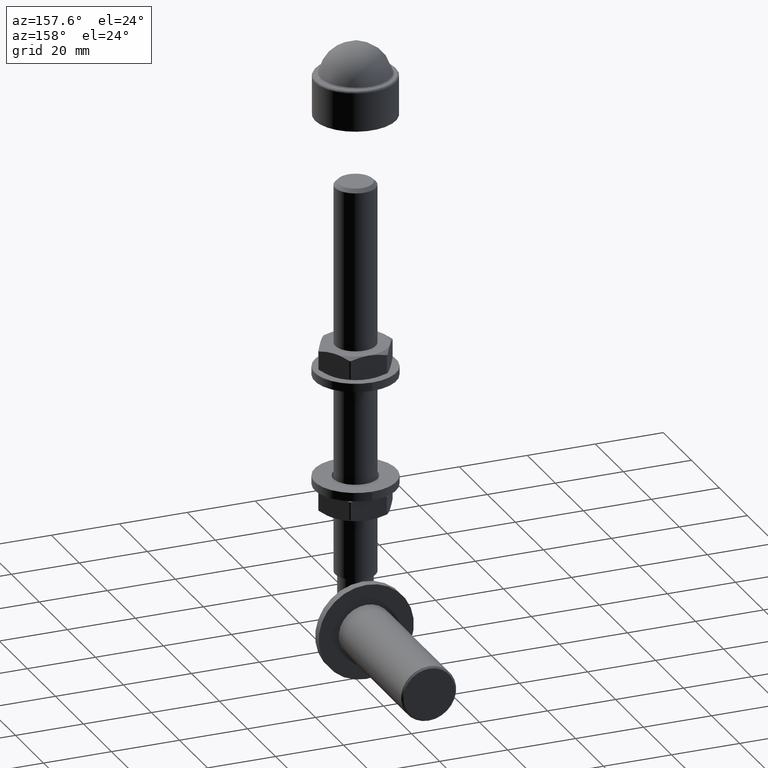
[diagram: clean part render]
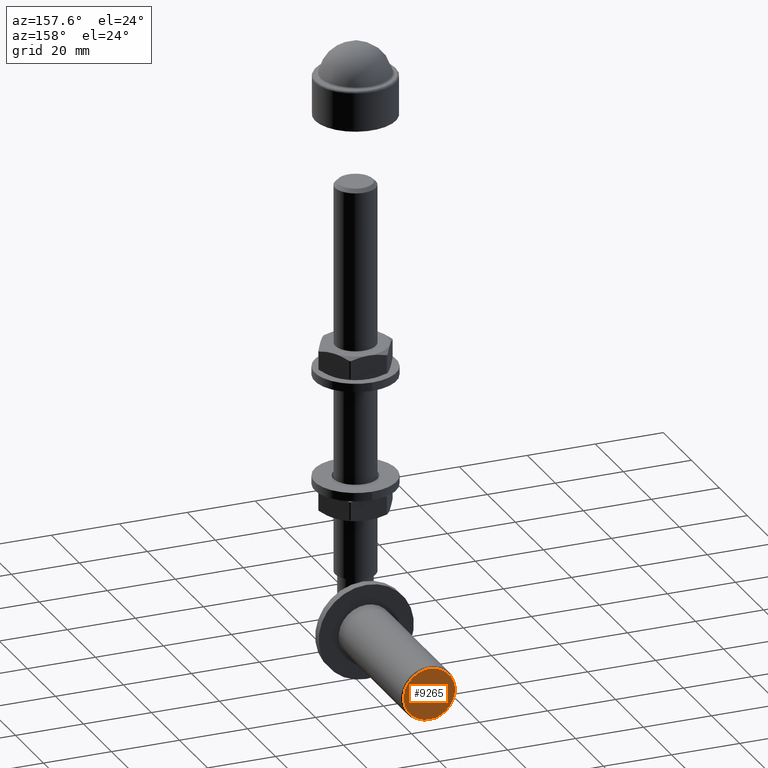
[diagram: same view with one face highlighted and labeled with its STEP entity id]
A machine part, auxiliary view. The second image highlights one B-rep face of the part: STEP entity #9265.
In plain terms, the highlighted planar face has unit normal (0, 1, 0).
Its self-contained STEP definition (entity closure, byte-faithful):
#489 = CARTESIAN_POINT ( 'NONE',  ( 0.000000000000000000, 52.69999999999998153, -61.00000000000001421 ) ) ;
#2684 = DIRECTION ( 'NONE',  ( 0.000000000000000000, -0.000000000000000000, 1.000000000000000000 ) ) ;
#3675 = CARTESIAN_POINT ( 'NONE',  ( 0.000000000000000000, 52.69999999999998153, -61.00000000000001421 ) ) ;
#4628 = AXIS2_PLACEMENT_3D ( 'NONE', #489, #14609, #14564 ) ;
#6747 = EDGE_CURVE ( 'NONE', #12097, #12097, #12661, .T. ) ;
#6961 = CARTESIAN_POINT ( 'NONE',  ( 0.000000000000000000, 52.69999999999998153, -53.40000000000000568 ) ) ;
#8030 = EDGE_LOOP ( 'NONE', ( #11716 ) ) ;
#8149 = AXIS2_PLACEMENT_3D ( 'NONE', #3675, #10755, #2684 ) ;
#9265 = ADVANCED_FACE ( 'NONE', ( #13673 ), #11566, .T. ) ;
#10755 = DIRECTION ( 'NONE',  ( 0.000000000000000000, 1.000000000000000000, 0.000000000000000000 ) ) ;
#11566 = PLANE ( 'NONE',  #8149 ) ;
#11716 = ORIENTED_EDGE ( 'NONE', *, *, #6747, .T. ) ;
#12097 = VERTEX_POINT ( 'NONE', #6961 ) ;
#12661 = CIRCLE ( 'NONE', #4628, 7.600000000000009415 ) ;
#13673 = FACE_OUTER_BOUND ( 'NONE', #8030, .T. ) ;
#14564 = DIRECTION ( 'NONE',  ( 0.000000000000000000, 0.000000000000000000, 1.000000000000000000 ) ) ;
#14609 = DIRECTION ( 'NONE',  ( 0.000000000000000000, 1.000000000000000000, 0.000000000000000000 ) ) ;